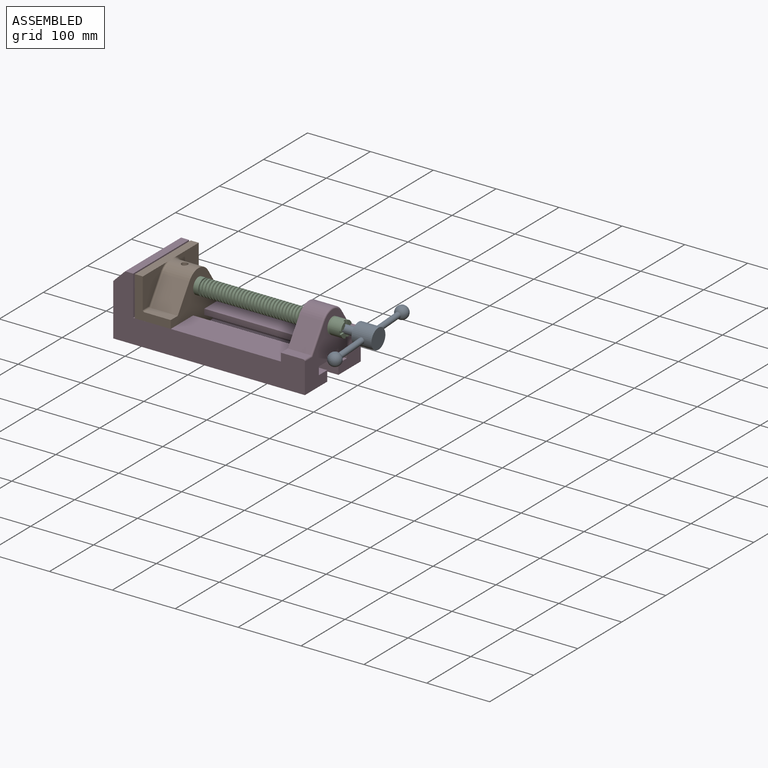
[diagram: assembled view]
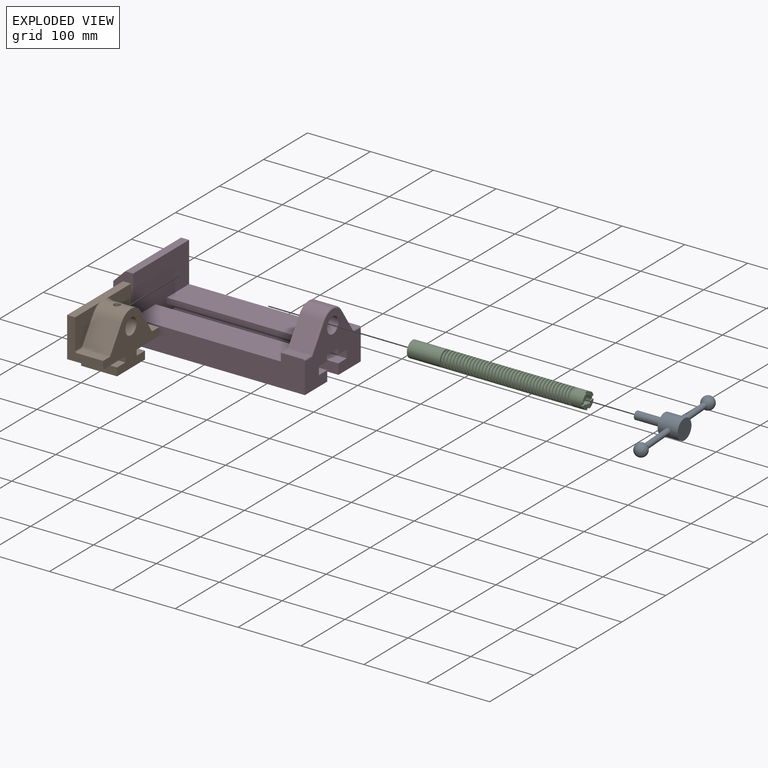
[diagram: exploded view]
GUIDED TOUR — MATED ASSEMBLY (Onshape document 1687b787eb27976bda913274, AutoMate assembly 1687b787eb27976bda913274_9c35184cbd0f171b25235a60_0a17979eedfbbc25ad5a4dea_default)

This assembly has 4 components, labeled P0..P3 below (a component is one placed occurrence of a part; the same part can appear more than once), held together by 3 mates. A mate is a constraint between two components; its type names the relative motion it leaves free:
  FASTENED — locks the two components together rigidly (no relative motion),
  REVOLUTE — leaves rotation about the listed axis free (a hinge),
  SLIDER — leaves translation along the listed axis free.
Axis/direction vectors are unit vectors and 'through' points are millimeter coordinates, both in the assembly's world frame.

MATES
  1. SLIDER "Slider 2": P3 <-> P1, axis (1.000, 0.000, 0.000) through (-104.32, -75.25, 162.42) mm
  2. REVOLUTE "Revolute 1": P1 <-> P2, axis (-1.000, 0.000, 0.000) through (-89.03, -11.75, 200.52) mm
  3. FASTENED "Fastened 1": P2 <-> P0, direction (1.000, 0.000, 0.000) through (164.97, -11.75, 200.52) mm

ASSEMBLY ORDER
  1. P3 — the base component [order heuristic]
  2. P2 — core [order heuristic]
  3. P1 [order verified]
  4. P0 [order verified]
(P1 verified with a relaxed clearance tolerance: the source model stores slight part interference there.)
Order-tag legend:
  [order verified] — this step's position reverses a verified removal order: the component was checked to insert without passing through the ones already placed.
  [order heuristic] — the first 2 components form the assembly's core: parts whose collision-free extraction could not be verified, listed in mate-graph order.

Of the 4 components, 1 carries the full construction recipe — the FeatureScript program that regenerates the part's solid from scratch; the rest are supplied as boundary geometry only.
Each toured component is shown spotlighted twice — in the assembled view, then in the exploded view, where a leader line traces a displaced component back to its assembled socket (saturated green if recipe-attached, orange if geometry-only; every other component desaturated gray) — followed by its recipe or geometry summary and the mates that hold it.
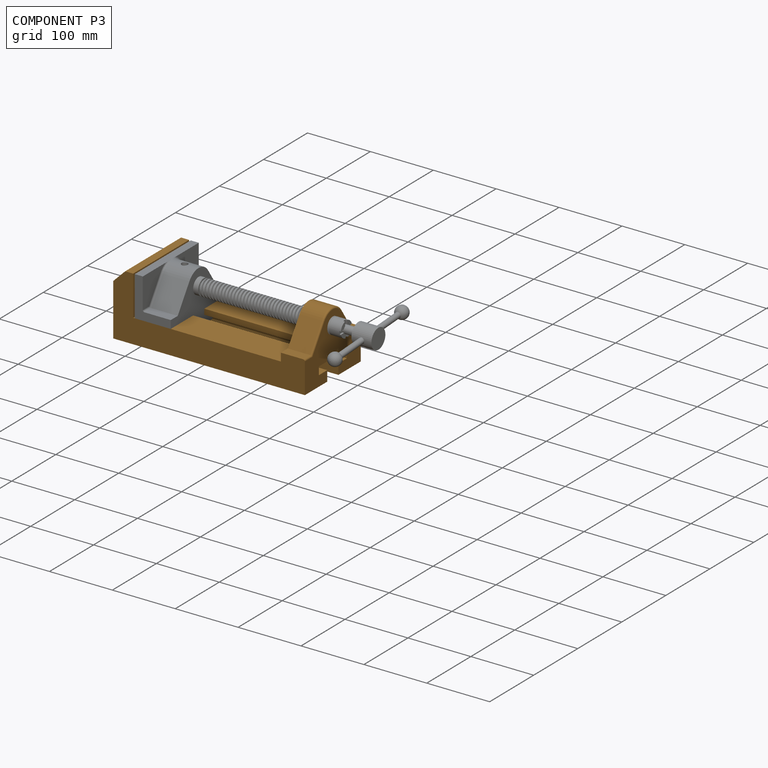
[diagram: component P3 — assembled]
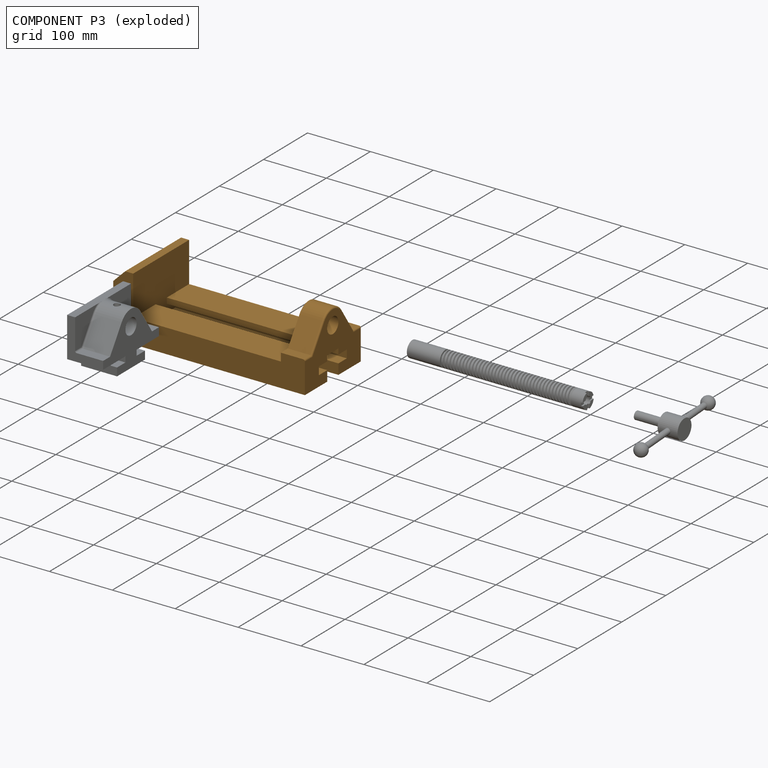
[diagram: component P3 — exploded]
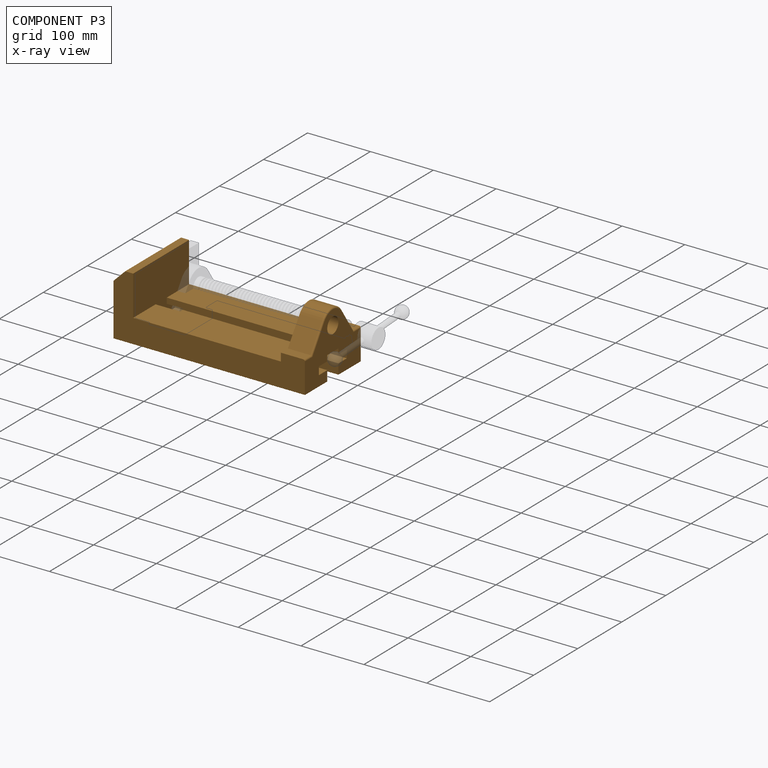
[diagram: component P3 — x-ray view]
COMPONENT P3 — geometry summary (no construction recipe available for this part):
  bounding box: 304.8 x 127.0 x 103.7 mm
  B-rep topology: 1 solid, 33 faces, 188 edges
  volume: 1469642 mm^3 (37% of its bounding box)
  symmetry: mirror-symmetric across its y mid-plane
Held by: SLIDER mate "Slider 2" to P1.
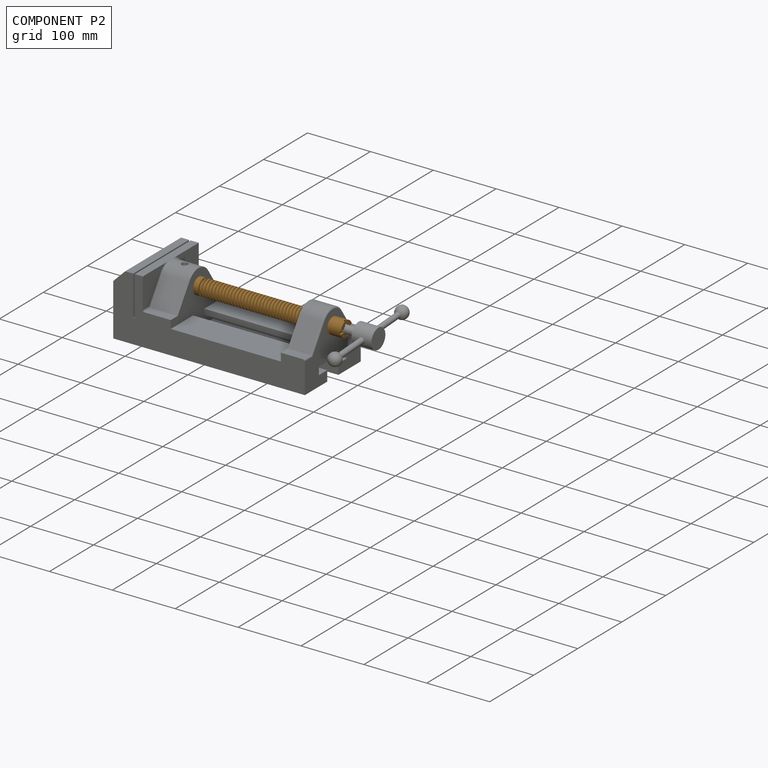
[diagram: component P2 — assembled]
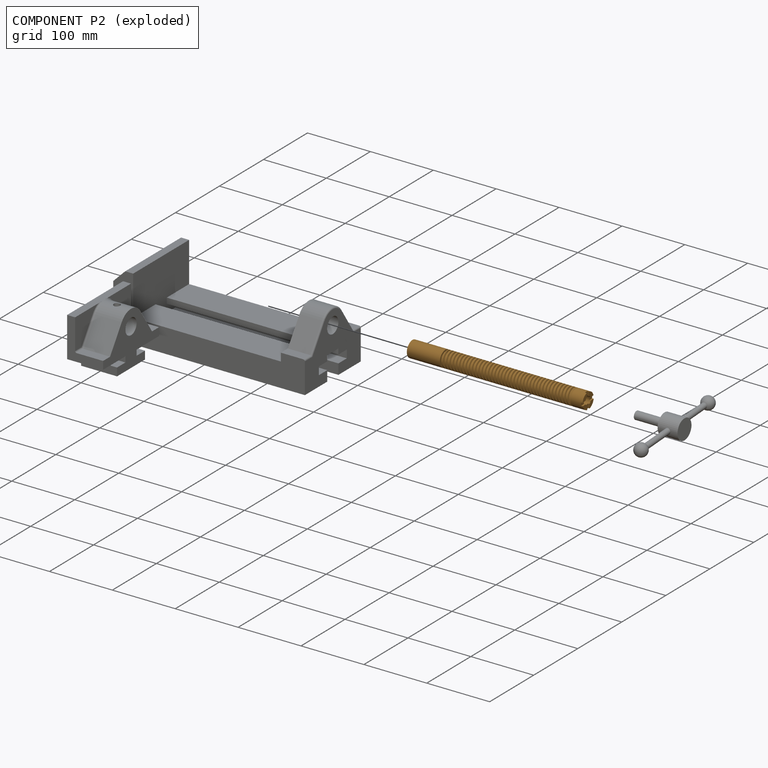
[diagram: component P2 — exploded]
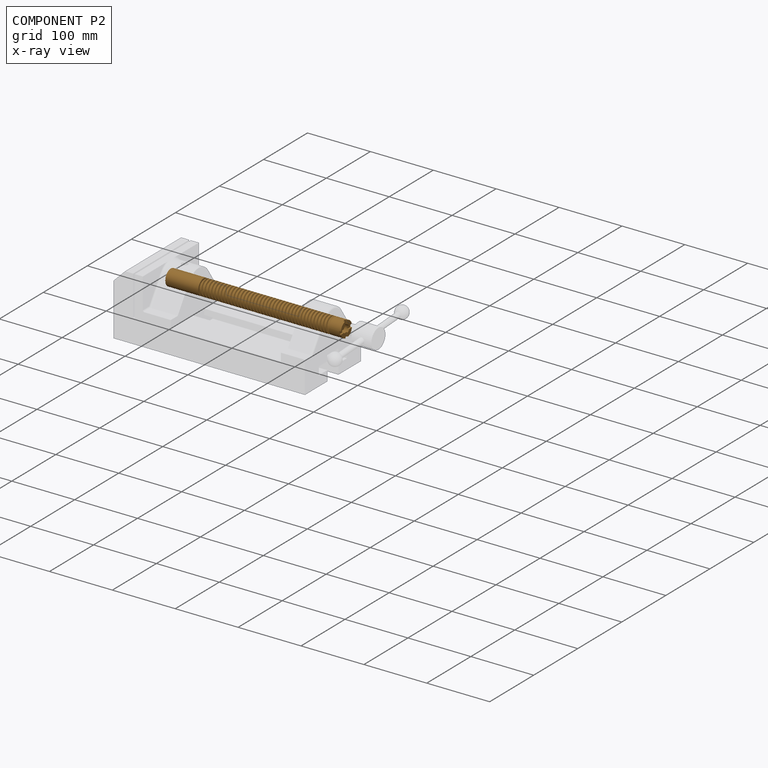
[diagram: component P2 — x-ray view]
COMPONENT P2 — geometry summary (no construction recipe available for this part):
  bounding box: 279.4 x 29.3 x 25.4 mm
  B-rep topology: 1 solid, 30 faces, 152 edges
  volume: 128444 mm^3 (62% of its bounding box)
Held by: REVOLUTE mate "Revolute 1" to P1; FASTENED mate "Fastened 1" to P0.
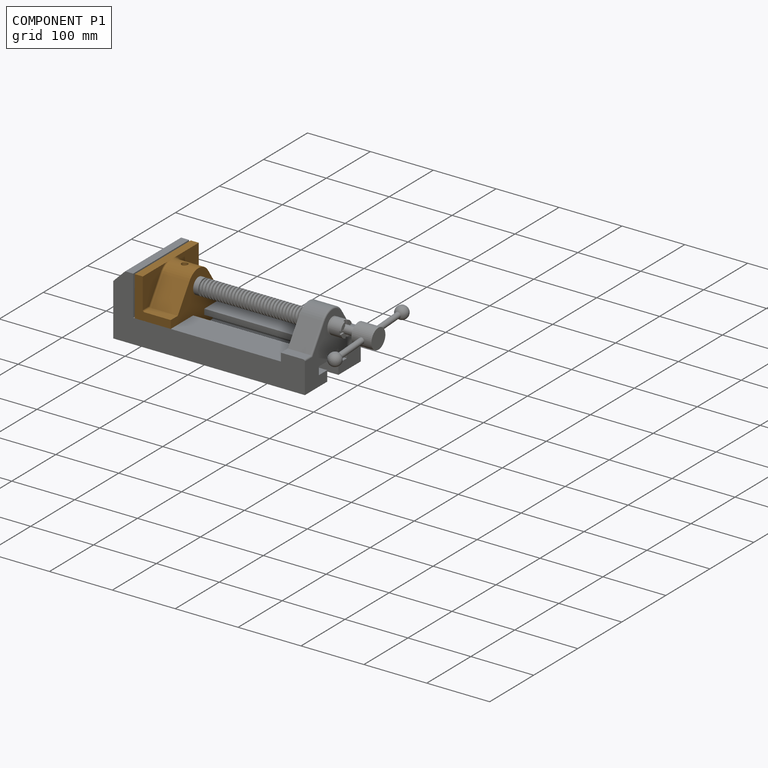
[diagram: component P1 — assembled]
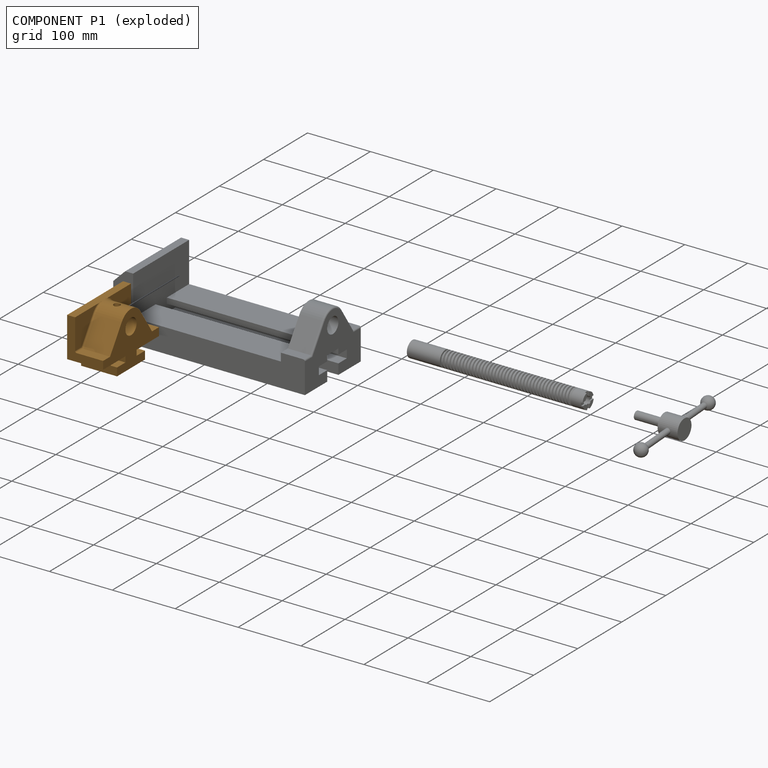
[diagram: component P1 — exploded]
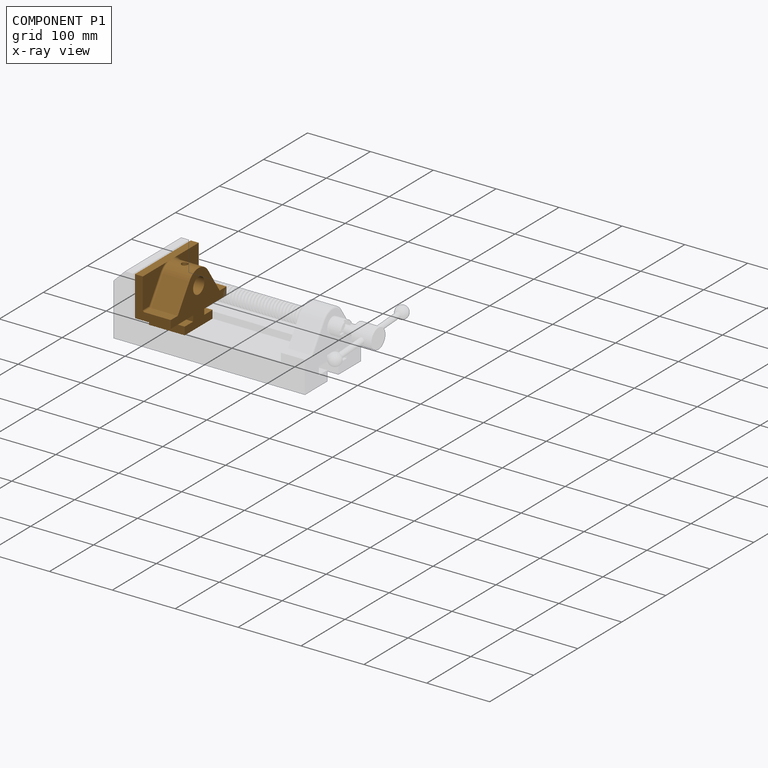
[diagram: component P1 — x-ray view]
COMPONENT P1 — geometry summary (no construction recipe available for this part):
  bounding box: 127.1 x 89.1 x 57.3 mm
  B-rep topology: 1 solid, 32 faces, 164 edges
  volume: 345407 mm^3 (53% of its bounding box)
  symmetry: mirror-symmetric across its x mid-plane
Held by: SLIDER mate "Slider 2" to P3; REVOLUTE mate "Revolute 1" to P2.
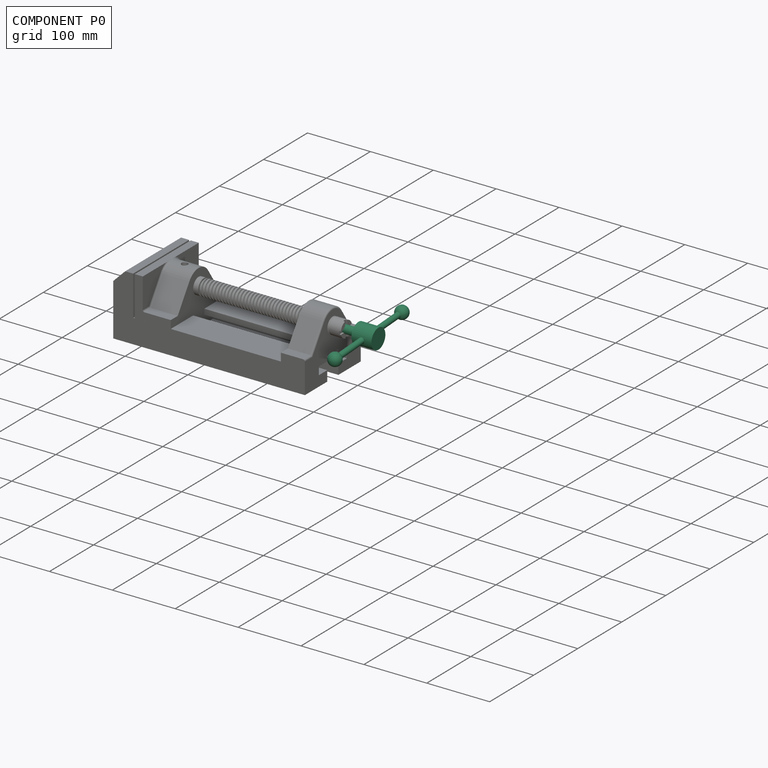
[diagram: component P0 — assembled]
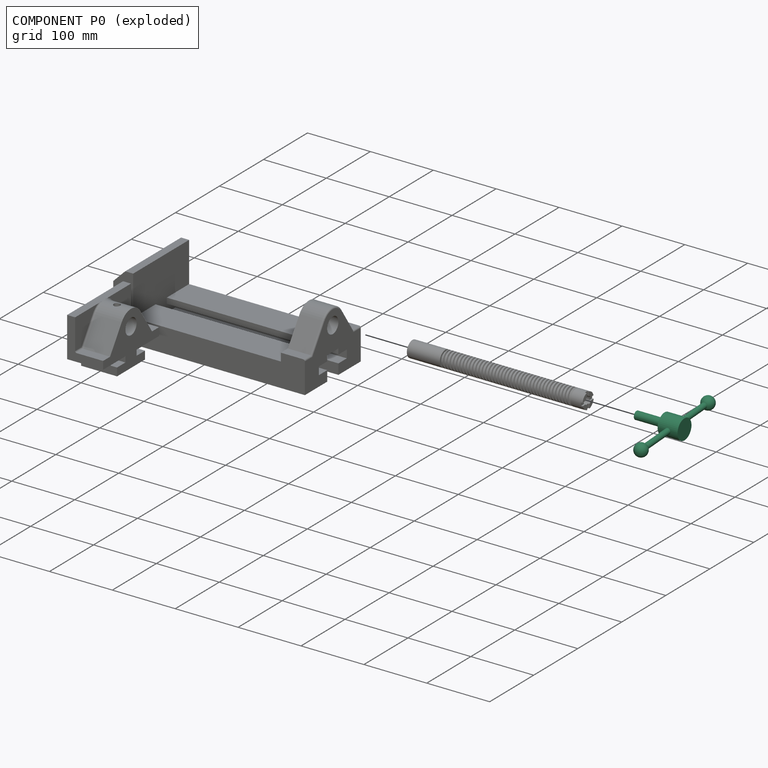
[diagram: component P0 — exploded]
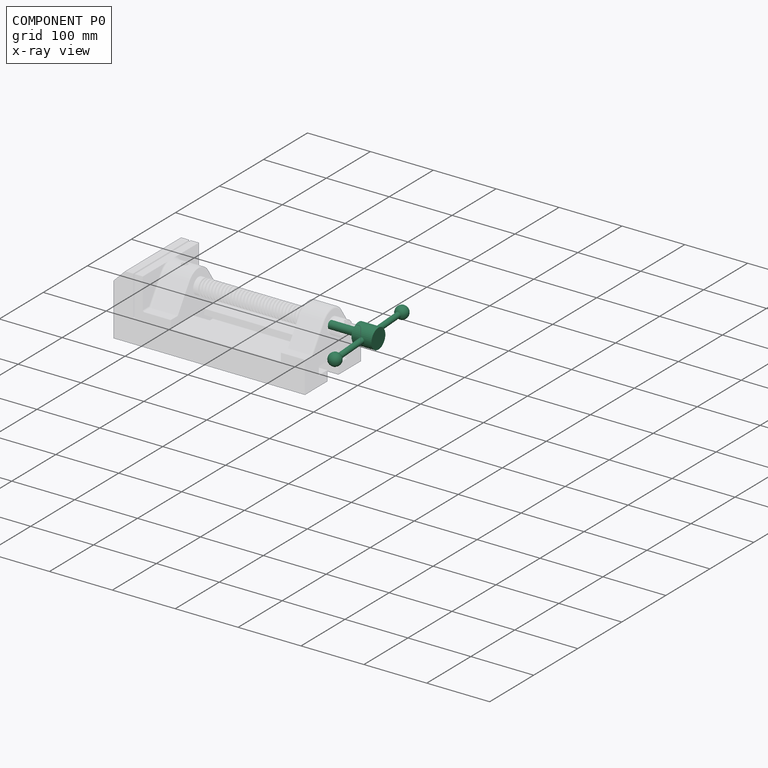
[diagram: component P0 — x-ray view]
COMPONENT P0 — recipe-attached (CADFS 00121024, mesh-verified: the recipe's output STEP matches this component's geometry to below the mesh-comparison resolution (tessellation chordal tolerance ~0.287 mm)).
Held by: FASTENED mate "Fastened 1" to P2.
Construction recipe (FeatureScript — the CAD program that rebuilds this solid; sketch coordinates are in the units given by the * unit suffixes, e.g. mm):

FeatureScript 1511;
import(path : "onshape/std/geometry.fs", version : "1511.0");
import(path : "onshape/std/common.fs", version : "1511.0");
const mm = millimeter;
const VERTEX = EntityType.VERTEX;
const EDGE = EntityType.EDGE;
const FACE = EntityType.FACE;
const BODY = EntityType.BODY;
function v(x, y){return vector(x, y);}
function OD(order){return orderDisambiguation(order);}
function OSD(set){return originalSetDisambiguation(set);}
function TD(topology){return topologyDisambiguation(topology);}
function TDD(query){return trueDependencyDisambiguation(query);}
function sQuery(a, b, c) {return sketchEntityQuery(a, b, c);}

annotation { "Feature Type Name" : "Feature", "Feature Type Description" : "" }
export const myFeature = defineFeature(function(context is Context, id is Id, definition is map)
    precondition{}
    {
        {
            var Q0;
            Q0=qCreatedBy(makeId("Top.planeOp"),FACE);
            var sketch = newSketch(context, id + "F0", { "sketchPlane" : qUnion([Q0])});
            skCircle(sketch, "E0", {"center": v(0, 0) * mm, "radius": 15.88 * mm});
            skCircle(sketch, "E1", {"center": v(0, 0) * mm, "radius": 6.35 * mm});
            skSolve(sketch);
        }
        {
            var Q0;
            Q0=makeQuery(id+"F0.imprint","IMPRINT",FACE,{"disambiguationData":[TD([[makeQuery(id+"F0.imprint","IMPRINT",EDGE,{"derivedFrom":sQuery(id+"F0.wireOp",EDGE,"E0")}),1.0]])]});
            var Q1;
            Q1=makeQuery(id+"F0.imprint","IMPRINT",FACE,{"disambiguationData":[TD([[makeQuery(id+"F0.imprint","IMPRINT",EDGE,{"derivedFrom":sQuery(id+"F0.wireOp",EDGE,"E1")}),1.0]])]});
            extrude(context, id + "F1", {"entities" : qUnion([Q0, Q1]), "depth" : 31.75 * mm});
        }
        {
            var Q0;
            Q0=makeQuery(id+"F0.imprint","IMPRINT",FACE,{"disambiguationData":[TD([[makeQuery(id+"F0.imprint","IMPRINT",EDGE,{"derivedFrom":sQuery(id+"F0.wireOp",EDGE,"E1")}),1.0]])]});
            extrude(context, id + "F2", {"entities" : qUnion([Q0]), "operationType" : NewBodyOperationType.ADD, "oppositeDirection" : true, "depth" : 44.45 * mm});
        }
        {
            var Q0;
            Q0=qCreatedBy(makeId("Right.planeOp"),FACE);
            var sketch = newSketch(context, id + "F3", { "sketchPlane" : qUnion([Q0])});
            skCircle(sketch, "E2", {"center": v(0, 15.88) * mm, "radius": 4.45 * mm});
            skSolve(sketch);
        }
        {
            var Q0;
            Q0 = qSketchRegion(id + "F3", true);
            extrude(context, id + "F4", {"entities" : qUnion([Q0]), "operationType" : NewBodyOperationType.ADD, "oppositeDirection" : true, "depth" : 76.2 * mm, "hasSecondDirection" : true, "secondDirectionOppositeDirection" : false, "secondDirectionDepth" : 76.2 * mm});
        }
        {
            var Q0;
            Q0=qCreatedBy(makeId("Front.planeOp"),FACE);
            var sketch = newSketch(context, id + "F5", { "sketchPlane" : qUnion([Q0])});
            skLineSegment(sketch, "E3", {"start": v(0, 50.12) * mm, "end": v(0, -71.95) * mm, "construction": true});
            skLineSegment(sketch, "E4.0", {"start": v(76.2, 20.32) * mm, "end": v(76.2, 11.43) * mm});
            skLineSegment(sketch, "E5", {"start": v(76.2, 15.88) * mm, "end": v(-89.61, 15.88) * mm, "construction": true});
            skLineSegment(sketch, "E6", {"start": v(66.04, 15.88) * mm, "end": v(86.36, 15.88) * mm});
            skArc(sketch, "E7", {"start": v(86.36, 15.88) * mm, "mid": v(76.2, 26.04) * mm, "end": v(66.04, 15.87) * mm});
            skCircle(sketch, "E8", {"center": v(76.2, 15.88) * mm, "radius": 10.16 * mm, "construction": true});
            skLineSegment(sketch, "E9.0", {"start": v(-76.2, 20.32) * mm, "end": v(-76.2, 11.43) * mm});
            skCircle(sketch, "E10", {"center": v(-76.2, 15.88) * mm, "radius": 10.16 * mm, "construction": true});
            skLineSegment(sketch, "E11", {"start": v(-66.04, 15.88) * mm, "end": v(-86.36, 15.88) * mm});
            skArc(sketch, "E12", {"start": v(-66.04, 15.88) * mm, "mid": v(-76.2, 26.03) * mm, "end": v(-86.36, 15.88) * mm});
            skSolve(sketch);
        }
        {
            var Q0;
            {var subQ0=sQuery(id+"F5.wireOp",EDGE,"E12");Q0=makeQuery(id+"F5.imprint","IMPRINT",FACE,{"disambiguationData":[TD([[makeQuery(id+"F5.imprint","IMPRINT",EDGE,{"derivedFrom":subQ0}),1.0]])]});}
            var Q1;
            Q1=sQuery(id+"F5.wireOp",EDGE,"E11");
            revolve(context, id + "F6", {"operationType" : NewBodyOperationType.ADD, "entities" : qUnion([Q0]), "axis" : qUnion([Q1]), "revolveType" : RevolveType.FULL});
        }
        {
            var Q0;
            {var subQ0=sQuery(id+"F5.wireOp",EDGE,"E7");Q0=makeQuery(id+"F5.imprint","IMPRINT",FACE,{"disambiguationData":[TD([[makeQuery(id+"F5.imprint","IMPRINT",EDGE,{"derivedFrom":subQ0}),1.0]])]});}
            var Q1;
            Q1=sQuery(id+"F5.wireOp",EDGE,"E6");
            revolve(context, id + "F7", {"operationType" : NewBodyOperationType.ADD, "entities" : qUnion([Q0]), "axis" : qUnion([Q1]), "revolveType" : RevolveType.FULL});
        }
    });
PROVENANCE & LICENSES
Assembly (occurrences, transforms, mates, per-part STEP geometry): AutoMate dataset, Zenodo record 7776208, CC0.
Construction recipes: CADFS (HuggingFace VladPyatov/CADFS, CC-BY-4.0, layered over the ABC dataset), FeatureScript reconstruction programs keyed by ABC model id.
Join: ABC meta listings map ABC model id -> Onshape documentId; within a shared document, parts are matched by geometric signature (bounding-box dims + volume at 0.1% relative tolerance, exact B-rep face/solid counts).
Verification: 1 of this assembly's 4 components carries a recipe attachment, and every attachment is mesh-verified: the CADFS STEP and the AutoMate member STEP were compared as meshes in their shared local frame (symmetric sampled-point-to-mesh distance); worst across the 1 attachment: below the mesh-comparison resolution (tessellation chordal tolerance ~0.287 mm) on a 191 mm part.
Renders: orthographic iso camera (az 35 / el 25); the floor grid conveys scale (grid pitch printed in each image; no ruler). In the exploded view each component is displaced by its stored offset vector: the offsets alone carry the explosion direction (mate normal/axis signs are not orientation cues and do not encode it), and separation distances are assigned per mate-chain, not proportionally to assembly-order depth.
